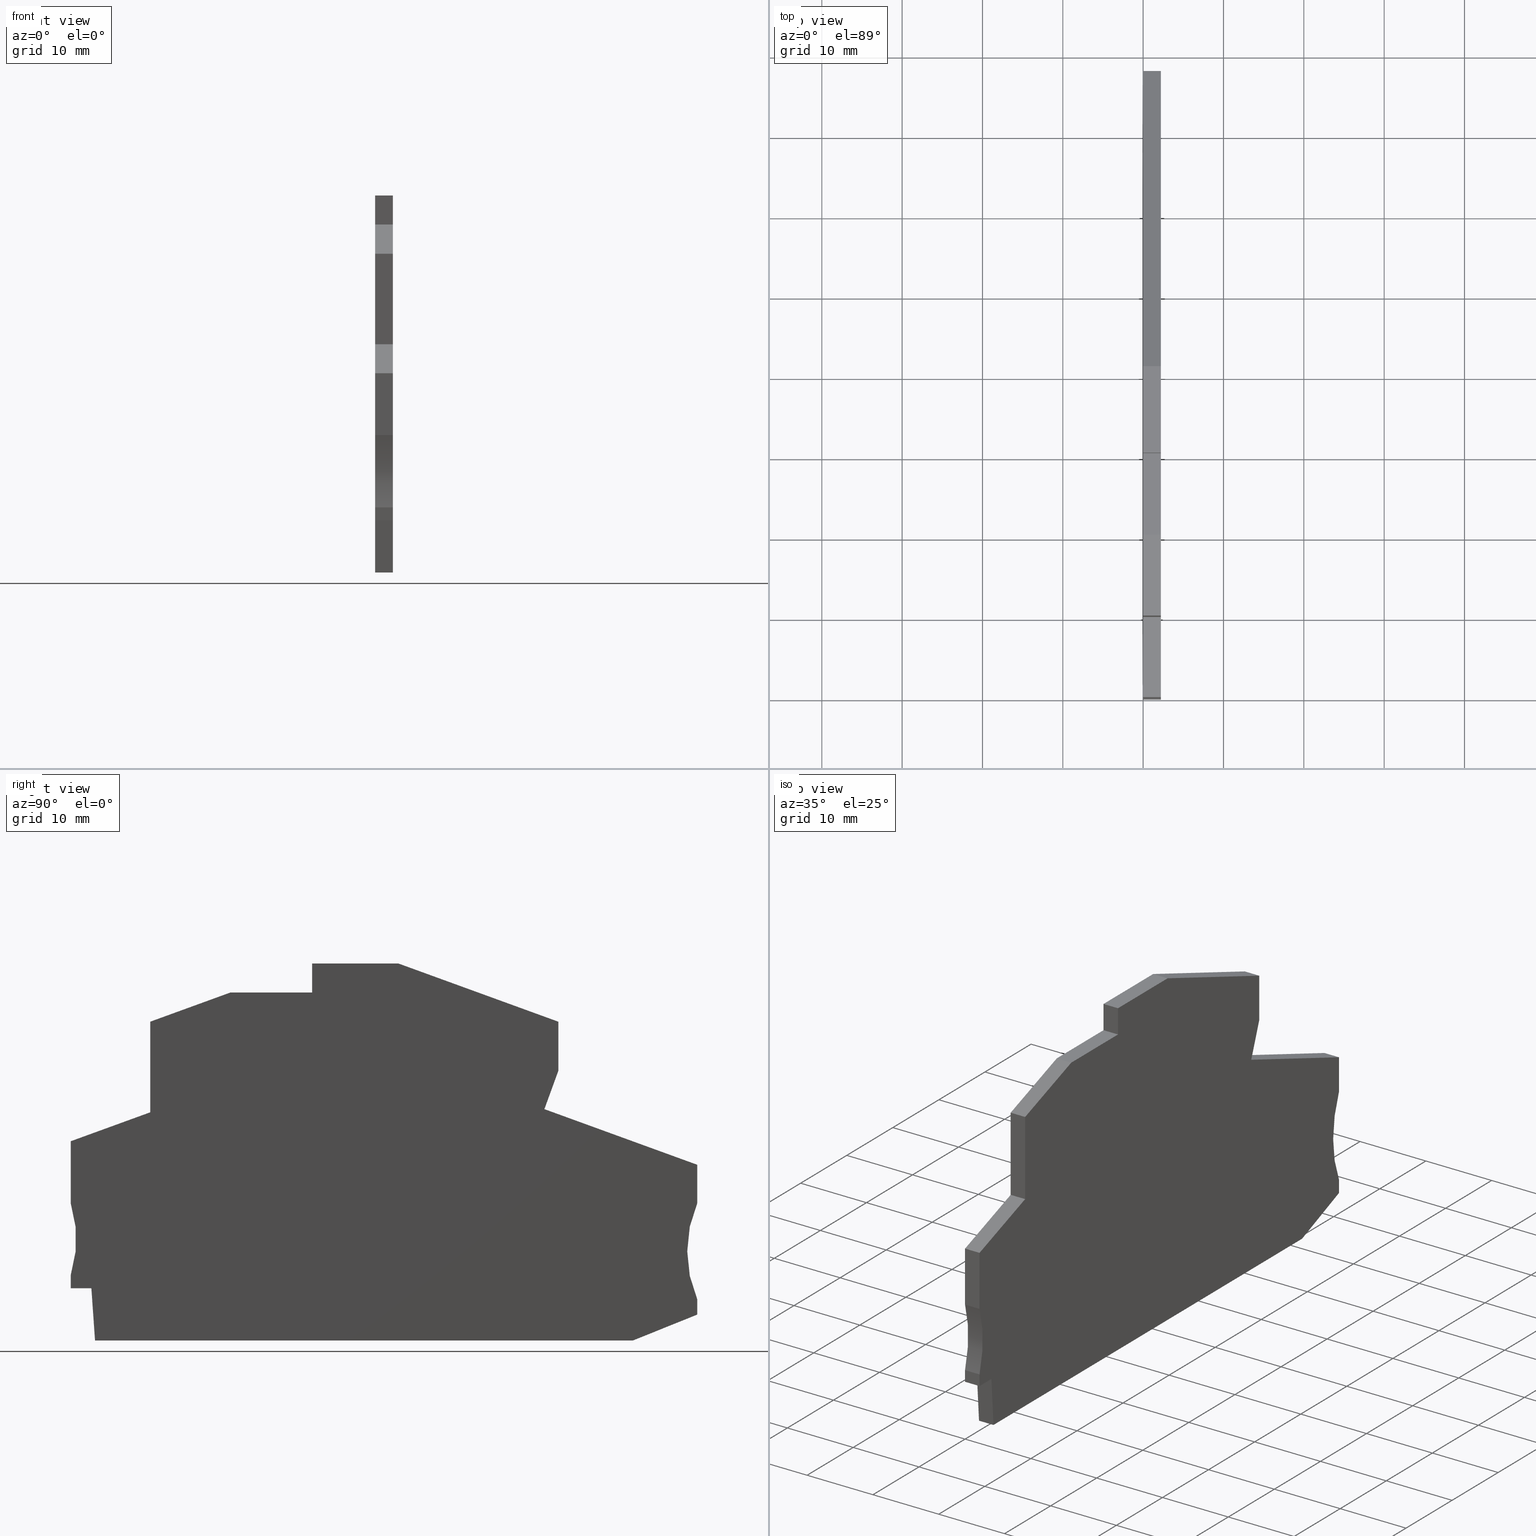
[diagram: canonical four-view strip — front | top / right | iso, engineering-drawing reading convention]
A machine part, canonical four-view strip (front | top / right | iso — engineering-drawing reading convention). The complete STEP part file that produces these views, byte-faithful:
ISO-10303-21;
HEADER;
FILE_DESCRIPTION(('Creo Elements/Direct Modeling STEP Export'),'2;1');
FILE_NAME(
'C:/temp/JobSpoolerServerData/JobServer Files/50fa4005-b6fd-4401-ae59-40
3b9b1654ef/work/output/model.stp','2020-09-17T 8:17:32',(''),(''),
'Creo Elements/Direct Modeling STEP processor for AP214 (Solid Model)',
'Creo Elements/Direct Modeling 20.1A  29-Sep-2018 (C) Parametric Technol
ogy GmbH','');
FILE_SCHEMA(('AUTOMOTIVE_DESIGN { 1 0 10303 214 1 1 1 1 }'));
ENDSEC;
DATA;
#10=CARTESIAN_POINT('',(-1.83729707538463,13.6155929972139,
-6.3948846218409E-14));
#20=DIRECTION('',(0.,0.,-1.));
#30=DIRECTION('',(-1.,0.,0.));
#40=AXIS2_PLACEMENT_3D('',#10,#20,#30);
#50=PLANE('',#40);
#60=CARTESIAN_POINT('',(-54.100000000024,22.375712,-6.3948846218409E-14)
);
#70=DIRECTION('',(-8.91857937436628E-13,1.,0.));
#80=VECTOR('',#70,1.);
#90=LINE('',#60,#80);
#100=CARTESIAN_POINT('',(-54.0999999999997,-4.91547575272546,
-6.3948846218409E-14));
#110=VERTEX_POINT('',#100);
#120=CARTESIAN_POINT('',(-54.1000000000011,-3.31547575273037,
-6.3948846218409E-14));
#130=VERTEX_POINT('',#120);
#140=EDGE_CURVE('',#110,#130,#90,.T.);
#150=ORIENTED_EDGE('',*,*,#140,.T.);
#160=CARTESIAN_POINT('',(-12.789958,-4.91547575272546,
-6.3948846218409E-14));
#170=DIRECTION('',(-1.,0.,0.));
#180=VECTOR('',#170,1.);
#190=LINE('',#160,#180);
#200=CARTESIAN_POINT('',(-51.5261083689502,-4.91547575272546,
-6.3948846218409E-14));
#210=VERTEX_POINT('',#200);
#220=EDGE_CURVE('',#210,#110,#190,.T.);
#230=ORIENTED_EDGE('',*,*,#220,.T.);
#240=CARTESIAN_POINT('',(-53.4344941226498,22.375712,
-6.3948846218409E-14));
#250=DIRECTION('',(-0.0697564737441188,0.997564050259825,0.));
#260=VECTOR('',#250,1.);
#270=LINE('',#240,#260);
#280=CARTESIAN_POINT('',(-51.0715840913172,-11.4154757527273,
-6.3948846218409E-14));
#290=VERTEX_POINT('',#280);
#300=EDGE_CURVE('',#290,#210,#270,.T.);
#310=ORIENTED_EDGE('',*,*,#300,.T.);
#320=CARTESIAN_POINT('',(-12.789958,-11.4154757527273,
-6.3948846218409E-14));
#330=DIRECTION('',(-1.,0.,0.));
#340=VECTOR('',#330,1.);
#350=LINE('',#320,#340);
#360=CARTESIAN_POINT('',(15.9050266445918,-11.4154757527273,
-6.3948846218409E-14));
#370=VERTEX_POINT('',#360);
#380=EDGE_CURVE('',#370,#290,#350,.T.);
#390=ORIENTED_EDGE('',*,*,#380,.T.);
#400=CARTESIAN_POINT('',(-12.789958,-22.9755486386901,
-6.3948846218409E-14));
#410=DIRECTION('',(-0.927558981852562,-0.373676779027864,0.));
#420=VECTOR('',#410,1.);
#430=LINE('',#400,#420);
#440=CARTESIAN_POINT('',(23.8999999761354,-8.19461762791234,
-6.3948846218409E-14));
#450=VERTEX_POINT('',#440);
#460=EDGE_CURVE('',#450,#370,#430,.T.);
#470=ORIENTED_EDGE('',*,*,#460,.T.);
#480=CARTESIAN_POINT('',(23.8999999761354,22.375712,-6.3948846218409E-14
));
#490=DIRECTION('',(-6.12323399573676E-17,-1.,0.));
#500=VECTOR('',#490,1.);
#510=LINE('',#480,#500);
#520=CARTESIAN_POINT('',(23.8999999761354,-6.31547574409539,
-6.3948846218409E-14));
#530=VERTEX_POINT('',#520);
#540=EDGE_CURVE('',#530,#450,#510,.T.);
#550=ORIENTED_EDGE('',*,*,#540,.T.);
#560=CARTESIAN_POINT('',(37.6477270610029,-0.315475744095373,
-6.3948846218409E-14));
#570=DIRECTION('',(0.,0.,1.));
#580=DIRECTION('',(1.,0.,0.));
#590=AXIS2_PLACEMENT_3D('',#560,#570,#580);
#600=CIRCLE('',#590,15.);
#610=CARTESIAN_POINT('',(23.8999999614379,5.68452422222856,
-6.3948846218409E-14));
#620=VERTEX_POINT('',#610);
#630=EDGE_CURVE('',#620,#530,#600,.T.);
#640=ORIENTED_EDGE('',*,*,#630,.T.);
#650=CARTESIAN_POINT('',(23.8999999614379,22.375712,-6.3948846218409E-14
));
#660=DIRECTION('',(0.,-1.,0.));
#670=VECTOR('',#660,1.);
#680=LINE('',#650,#670);
#690=CARTESIAN_POINT('',(23.8999999614379,10.4510262039411,
-6.3948846218409E-14));
#700=VERTEX_POINT('',#690);
#710=EDGE_CURVE('',#700,#620,#680,.T.);
#720=ORIENTED_EDGE('',*,*,#710,.T.);
#730=CARTESIAN_POINT('',(-12.789958,23.8050787983884,
-6.3948846218409E-14));
#740=DIRECTION('',(0.939692620785863,-0.342020143325795,0.));
#750=VECTOR('',#740,1.);
#760=LINE('',#730,#750);
#770=CARTESIAN_POINT('',(4.86636729023012,17.3787019462203,
-6.3948846218409E-14));
#780=VERTEX_POINT('',#770);
#790=EDGE_CURVE('',#780,#700,#760,.T.);
#800=ORIENTED_EDGE('',*,*,#790,.T.);
#810=CARTESIAN_POINT('',(6.68513021015243,22.375712,-6.3948846218409E-14
));
#820=DIRECTION('',(-0.342020143328586,-0.939692620784847,0.));
#830=VECTOR('',#820,1.);
#840=LINE('',#810,#830);
#850=CARTESIAN_POINT('',(6.59999996143703,22.1418185639441,
-6.3948846218409E-14));
#860=VERTEX_POINT('',#850);
#870=EDGE_CURVE('',#860,#780,#840,.T.);
#880=ORIENTED_EDGE('',*,*,#870,.T.);
#890=CARTESIAN_POINT('',(6.59999996143703,22.375712,-6.3948846218409E-14
));
#900=DIRECTION('',(0.,-1.,0.));
#910=VECTOR('',#900,1.);
#920=LINE('',#890,#910);
#930=CARTESIAN_POINT('',(6.59999996143703,28.2631896507696,
-6.3948846218409E-14));
#940=VERTEX_POINT('',#930);
#950=EDGE_CURVE('',#940,#860,#920,.T.);
#960=ORIENTED_EDGE('',*,*,#950,.T.);
#970=CARTESIAN_POINT('',(-12.789958,35.3205571924083,
-6.3948846218409E-14));
#980=DIRECTION('',(0.939692620785867,-0.342020143325783,0.));
#990=VECTOR('',#980,1.);
#1000=LINE('',#970,#990);
#1010=CARTESIAN_POINT('',(-13.2829730619506,35.5000000000033,
-6.3948846218409E-14));
#1020=VERTEX_POINT('',#1010);
#1030=EDGE_CURVE('',#1020,#940,#1000,.T.);
#1040=ORIENTED_EDGE('',*,*,#1030,.T.);
#1050=CARTESIAN_POINT('',(-12.789958,35.5000000000033,
-6.3948846218409E-14));
#1060=DIRECTION('',(1.,0.,0.));
#1070=VECTOR('',#1060,1.);
#1080=LINE('',#1050,#1070);
#1090=CARTESIAN_POINT('',(-24.050000038563,35.5000000000033,
-6.3948846218409E-14));
#1100=VERTEX_POINT('',#1090);
#1110=EDGE_CURVE('',#1100,#1020,#1080,.T.);
#1120=ORIENTED_EDGE('',*,*,#1110,.T.);
#1130=CARTESIAN_POINT('',(-24.050000038563,22.375712,
-6.3948846218409E-14));
#1140=DIRECTION('',(0.,1.,0.));
#1150=VECTOR('',#1140,1.);
#1160=LINE('',#1130,#1150);
#1170=CARTESIAN_POINT('',(-24.050000038563,31.9000000000017,
-6.3948846218409E-14));
#1180=VERTEX_POINT('',#1170);
#1190=EDGE_CURVE('',#1180,#1100,#1160,.T.);
#1200=ORIENTED_EDGE('',*,*,#1190,.T.);
#1210=CARTESIAN_POINT('',(-12.789958,31.9000000000017,
-6.3948846218409E-14));
#1220=DIRECTION('',(1.,0.,0.));
#1230=VECTOR('',#1220,1.);
#1240=LINE('',#1210,#1230);
#1250=CARTESIAN_POINT('',(-34.207945725206,31.9000000000017,
-6.3948846218409E-14));
#1260=VERTEX_POINT('',#1250);
#1270=EDGE_CURVE('',#1260,#1180,#1240,.T.);
#1280=ORIENTED_EDGE('',*,*,#1270,.T.);
#1290=CARTESIAN_POINT('',(-12.789958,39.6955100098559,
-6.3948846218409E-14));
#1300=DIRECTION('',(0.939692620785904,0.342020143325682,0.));
#1310=VECTOR('',#1300,1.);
#1320=LINE('',#1290,#1310);
#1330=CARTESIAN_POINT('',(-44.200000038562,28.2631896507687,
-6.3948846218409E-14));
#1340=VERTEX_POINT('',#1330);
#1350=EDGE_CURVE('',#1340,#1260,#1320,.T.);
#1360=ORIENTED_EDGE('',*,*,#1350,.T.);
#1370=CARTESIAN_POINT('',(-44.200000038562,22.375712,
-6.3948846218409E-14));
#1380=DIRECTION('',(0.,1.,0.));
#1390=VECTOR('',#1380,1.);
#1400=LINE('',#1370,#1390);
#1410=CARTESIAN_POINT('',(-44.200000038562,16.9829052625245,
-6.3948846218409E-14));
#1420=VERTEX_POINT('',#1410);
#1430=EDGE_CURVE('',#1420,#1340,#1400,.T.);
#1440=ORIENTED_EDGE('',*,*,#1430,.T.);
#1450=CARTESIAN_POINT('',(-12.789958,28.4152256216117,
-6.3948846218409E-14));
#1460=DIRECTION('',(0.939692620785904,0.342020143325682,0.));
#1470=VECTOR('',#1460,1.);
#1480=LINE('',#1450,#1470);
#1490=CARTESIAN_POINT('',(-54.1,13.3795999573244,-6.3948846218409E-14));
#1500=VERTEX_POINT('',#1490);
#1510=EDGE_CURVE('',#1500,#1420,#1480,.T.);
#1520=ORIENTED_EDGE('',*,*,#1510,.T.);
#1530=CARTESIAN_POINT('',(-54.1,22.375712,-6.3948846218409E-14));
#1540=DIRECTION('',(0.,1.,0.));
#1550=VECTOR('',#1540,1.);
#1560=LINE('',#1530,#1550);
#1570=CARTESIAN_POINT('',(-54.1,5.68452424726971,-6.3948846218409E-14));
#1580=VERTEX_POINT('',#1570);
#1590=EDGE_CURVE('',#1580,#1500,#1560,.T.);
#1600=ORIENTED_EDGE('',*,*,#1590,.T.);
#1610=CARTESIAN_POINT('',(-68.4090880212549,1.18452424727143,
-6.3948846218409E-14));
#1620=DIRECTION('',(0.,0.,1.));
#1630=DIRECTION('',(1.,0.,0.));
#1640=AXIS2_PLACEMENT_3D('',#1610,#1620,#1630);
#1650=CIRCLE('',#1640,15.0000000000001);
#1660=EDGE_CURVE('',#130,#1580,#1650,.T.);
#1670=ORIENTED_EDGE('',*,*,#1660,.T.);
#1680=EDGE_LOOP('',(#1670,#1600,#1520,#1440,#1360,#1280,#1200,#1120,
#1040,#960,#880,#800,#720,#640,#550,#470,#390,#310,#230,#150));
#1690=FACE_OUTER_BOUND('',#1680,.T.);
#1700=ADVANCED_FACE('',(#1690),#50,.T.);
#1710=COLOUR_RGB('',0.560784339904785,0.588235318660736,
0.600000023841858);
#1720=FILL_AREA_STYLE_COLOUR('',#1710);
#1730=FILL_AREA_STYLE('',(#1720));
#1740=SURFACE_STYLE_FILL_AREA(#1730);
#1750=SURFACE_SIDE_STYLE('',(#1740));
#1760=SURFACE_STYLE_USAGE(.BOTH.,#1750);
#1770=PRESENTATION_STYLE_ASSIGNMENT((#1760));
#1780=CARTESIAN_POINT('',(-16.9435786159794,-3.29416937217266,
2.19999999999994));
#1790=DIRECTION('',(0.,0.,1.));
#1800=DIRECTION('',(1.,0.,0.));
#1810=AXIS2_PLACEMENT_3D('',#1780,#1790,#1800);
#1820=PLANE('',#1810);
#1830=CARTESIAN_POINT('',(-68.4090880212549,1.18452424727143,
2.19999999999994));
#1840=DIRECTION('',(0.,0.,1.));
#1850=DIRECTION('',(1.,0.,0.));
#1860=AXIS2_PLACEMENT_3D('',#1830,#1840,#1850);
#1870=CIRCLE('',#1860,15.0000000000001);
#1880=CARTESIAN_POINT('',(-54.1000000000011,-3.31547575273034,
2.19999999999994));
#1890=VERTEX_POINT('',#1880);
#1900=CARTESIAN_POINT('',(-54.1,5.68452424726971,2.19999999999994));
#1910=VERTEX_POINT('',#1900);
#1920=EDGE_CURVE('',#1890,#1910,#1870,.T.);
#1930=ORIENTED_EDGE('',*,*,#1920,.F.);
#1940=CARTESIAN_POINT('',(-54.1,22.375712,2.19999999999994));
#1950=DIRECTION('',(0.,-1.,0.));
#1960=VECTOR('',#1950,1.);
#1970=LINE('',#1940,#1960);
#1980=CARTESIAN_POINT('',(-54.1,13.3795999573244,2.19999999999994));
#1990=VERTEX_POINT('',#1980);
#2000=EDGE_CURVE('',#1990,#1910,#1970,.T.);
#2010=ORIENTED_EDGE('',*,*,#2000,.T.);
#2020=CARTESIAN_POINT('',(-12.789958,28.4152256216117,2.19999999999994))
;
#2030=DIRECTION('',(-0.939692620785904,-0.342020143325682,0.));
#2040=VECTOR('',#2030,1.);
#2050=LINE('',#2020,#2040);
#2060=CARTESIAN_POINT('',(-44.200000038562,16.9829052625245,
2.19999999999994));
#2070=VERTEX_POINT('',#2060);
#2080=EDGE_CURVE('',#2070,#1990,#2050,.T.);
#2090=ORIENTED_EDGE('',*,*,#2080,.T.);
#2100=CARTESIAN_POINT('',(-44.200000038562,22.375712,2.19999999999994));
#2110=DIRECTION('',(0.,-1.,0.));
#2120=VECTOR('',#2110,1.);
#2130=LINE('',#2100,#2120);
#2140=CARTESIAN_POINT('',(-44.200000038562,28.2631896507687,
2.19999999999994));
#2150=VERTEX_POINT('',#2140);
#2160=EDGE_CURVE('',#2150,#2070,#2130,.T.);
#2170=ORIENTED_EDGE('',*,*,#2160,.T.);
#2180=CARTESIAN_POINT('',(-12.789958,39.6955100098559,2.19999999999994))
;
#2190=DIRECTION('',(-0.939692620785904,-0.342020143325682,0.));
#2200=VECTOR('',#2190,1.);
#2210=LINE('',#2180,#2200);
#2220=CARTESIAN_POINT('',(-34.207945725206,31.9000000000016,
2.19999999999994));
#2230=VERTEX_POINT('',#2220);
#2240=EDGE_CURVE('',#2230,#2150,#2210,.T.);
#2250=ORIENTED_EDGE('',*,*,#2240,.T.);
#2260=CARTESIAN_POINT('',(-12.789958,31.9000000000017,2.19999999999994))
;
#2270=DIRECTION('',(-1.,0.,0.));
#2280=VECTOR('',#2270,1.);
#2290=LINE('',#2260,#2280);
#2300=CARTESIAN_POINT('',(-24.050000038563,31.9000000000017,
2.19999999999994));
#2310=VERTEX_POINT('',#2300);
#2320=EDGE_CURVE('',#2310,#2230,#2290,.T.);
#2330=ORIENTED_EDGE('',*,*,#2320,.T.);
#2340=CARTESIAN_POINT('',(-24.050000038563,22.375712,2.19999999999994));
#2350=DIRECTION('',(0.,-1.,0.));
#2360=VECTOR('',#2350,1.);
#2370=LINE('',#2340,#2360);
#2380=CARTESIAN_POINT('',(-24.050000038563,35.5000000000033,
2.19999999999994));
#2390=VERTEX_POINT('',#2380);
#2400=EDGE_CURVE('',#2390,#2310,#2370,.T.);
#2410=ORIENTED_EDGE('',*,*,#2400,.T.);
#2420=CARTESIAN_POINT('',(-12.789958,35.5000000000033,2.19999999999994))
;
#2430=DIRECTION('',(-1.,0.,0.));
#2440=VECTOR('',#2430,1.);
#2450=LINE('',#2420,#2440);
#2460=CARTESIAN_POINT('',(-13.2829730619506,35.5000000000033,
2.19999999999994));
#2470=VERTEX_POINT('',#2460);
#2480=EDGE_CURVE('',#2470,#2390,#2450,.T.);
#2490=ORIENTED_EDGE('',*,*,#2480,.T.);
#2500=CARTESIAN_POINT('',(-12.789958,35.3205571924083,2.19999999999994))
;
#2510=DIRECTION('',(-0.939692620785867,0.342020143325783,0.));
#2520=VECTOR('',#2510,1.);
#2530=LINE('',#2500,#2520);
#2540=CARTESIAN_POINT('',(6.59999996143703,28.2631896507696,
2.19999999999994));
#2550=VERTEX_POINT('',#2540);
#2560=EDGE_CURVE('',#2550,#2470,#2530,.T.);
#2570=ORIENTED_EDGE('',*,*,#2560,.T.);
#2580=CARTESIAN_POINT('',(6.59999996143703,22.375712,2.19999999999994));
#2590=DIRECTION('',(0.,1.,0.));
#2600=VECTOR('',#2590,1.);
#2610=LINE('',#2580,#2600);
#2620=CARTESIAN_POINT('',(6.59999996143703,22.1418185639441,
2.19999999999994));
#2630=VERTEX_POINT('',#2620);
#2640=EDGE_CURVE('',#2630,#2550,#2610,.T.);
#2650=ORIENTED_EDGE('',*,*,#2640,.T.);
#2660=CARTESIAN_POINT('',(6.68513021015243,22.375712,2.19999999999994));
#2670=DIRECTION('',(0.342020143328586,0.939692620784847,0.));
#2680=VECTOR('',#2670,1.);
#2690=LINE('',#2660,#2680);
#2700=CARTESIAN_POINT('',(4.86636729023012,17.3787019462203,
2.19999999999994));
#2710=VERTEX_POINT('',#2700);
#2720=EDGE_CURVE('',#2710,#2630,#2690,.T.);
#2730=ORIENTED_EDGE('',*,*,#2720,.T.);
#2740=CARTESIAN_POINT('',(-12.789958,23.8050787983884,2.19999999999994))
;
#2750=DIRECTION('',(-0.939692620785863,0.342020143325795,0.));
#2760=VECTOR('',#2750,1.);
#2770=LINE('',#2740,#2760);
#2780=CARTESIAN_POINT('',(23.8999999614379,10.4510262039411,
2.19999999999994));
#2790=VERTEX_POINT('',#2780);
#2800=EDGE_CURVE('',#2790,#2710,#2770,.T.);
#2810=ORIENTED_EDGE('',*,*,#2800,.T.);
#2820=CARTESIAN_POINT('',(23.8999999614379,22.375712,2.19999999999994));
#2830=DIRECTION('',(0.,1.,0.));
#2840=VECTOR('',#2830,1.);
#2850=LINE('',#2820,#2840);
#2860=CARTESIAN_POINT('',(23.8999999614379,5.68452422222856,
2.19999999999994));
#2870=VERTEX_POINT('',#2860);
#2880=EDGE_CURVE('',#2870,#2790,#2850,.T.);
#2890=ORIENTED_EDGE('',*,*,#2880,.T.);
#2900=CARTESIAN_POINT('',(37.6477270610029,-0.315475744095373,
2.19999999999994));
#2910=DIRECTION('',(0.,0.,1.));
#2920=DIRECTION('',(1.,0.,0.));
#2930=AXIS2_PLACEMENT_3D('',#2900,#2910,#2920);
#2940=CIRCLE('',#2930,15.);
#2950=CARTESIAN_POINT('',(23.8999999761354,-6.31547574409539,
2.19999999999994));
#2960=VERTEX_POINT('',#2950);
#2970=EDGE_CURVE('',#2870,#2960,#2940,.T.);
#2980=ORIENTED_EDGE('',*,*,#2970,.F.);
#2990=CARTESIAN_POINT('',(23.8999999761354,22.375712,2.19999999999994));
#3000=DIRECTION('',(6.12323399573676E-17,1.,0.));
#3010=VECTOR('',#3000,1.);
#3020=LINE('',#2990,#3010);
#3030=CARTESIAN_POINT('',(23.8999999761354,-8.19461762791234,
2.19999999999994));
#3040=VERTEX_POINT('',#3030);
#3050=EDGE_CURVE('',#3040,#2960,#3020,.T.);
#3060=ORIENTED_EDGE('',*,*,#3050,.T.);
#3070=CARTESIAN_POINT('',(-12.789958,-22.9755486386901,2.19999999999994)
);
#3080=DIRECTION('',(0.927558981852562,0.373676779027864,0.));
#3090=VECTOR('',#3080,1.);
#3100=LINE('',#3070,#3090);
#3110=CARTESIAN_POINT('',(15.9050266445918,-11.4154757527273,
2.19999999999994));
#3120=VERTEX_POINT('',#3110);
#3130=EDGE_CURVE('',#3120,#3040,#3100,.T.);
#3140=ORIENTED_EDGE('',*,*,#3130,.T.);
#3150=CARTESIAN_POINT('',(-12.789958,-11.4154757527273,2.19999999999994)
);
#3160=DIRECTION('',(1.,0.,0.));
#3170=VECTOR('',#3160,1.);
#3180=LINE('',#3150,#3170);
#3190=CARTESIAN_POINT('',(-51.0715840913172,-11.4154757527273,
2.19999999999994));
#3200=VERTEX_POINT('',#3190);
#3210=EDGE_CURVE('',#3200,#3120,#3180,.T.);
#3220=ORIENTED_EDGE('',*,*,#3210,.T.);
#3230=CARTESIAN_POINT('',(-53.4344941226498,22.375712,2.19999999999994))
;
#3240=DIRECTION('',(0.0697564737441188,-0.997564050259825,0.));
#3250=VECTOR('',#3240,1.);
#3260=LINE('',#3230,#3250);
#3270=CARTESIAN_POINT('',(-51.5261083689501,-4.91547575272546,
2.19999999999994));
#3280=VERTEX_POINT('',#3270);
#3290=EDGE_CURVE('',#3280,#3200,#3260,.T.);
#3300=ORIENTED_EDGE('',*,*,#3290,.T.);
#3310=CARTESIAN_POINT('',(-12.789958,-4.91547575272546,2.19999999999994)
);
#3320=DIRECTION('',(1.,0.,0.));
#3330=VECTOR('',#3320,1.);
#3340=LINE('',#3310,#3330);
#3350=CARTESIAN_POINT('',(-54.0999999999997,-4.91547575272546,
2.19999999999994));
#3360=VERTEX_POINT('',#3350);
#3370=EDGE_CURVE('',#3360,#3280,#3340,.T.);
#3380=ORIENTED_EDGE('',*,*,#3370,.T.);
#3390=CARTESIAN_POINT('',(-54.100000000024,22.375712,2.19999999999994));
#3400=DIRECTION('',(8.91857937436628E-13,-1.,0.));
#3410=VECTOR('',#3400,1.);
#3420=LINE('',#3390,#3410);
#3430=EDGE_CURVE('',#1890,#3360,#3420,.T.);
#3440=ORIENTED_EDGE('',*,*,#3430,.T.);
#3450=EDGE_LOOP('',(#3440,#3380,#3300,#3220,#3140,#3060,#2980,#2890,
#2810,#2730,#2650,#2570,#2490,#2410,#2330,#2250,#2170,#2090,#2010,#1930)
);
#3460=FACE_OUTER_BOUND('',#3450,.T.);
#3470=ADVANCED_FACE('',(#3460),#1820,.T.);
#3480=COLOUR_RGB('',0.560784339904785,0.588235318660736,
0.600000023841858);
#3490=FILL_AREA_STYLE_COLOUR('',#3480);
#3500=FILL_AREA_STYLE('',(#3490));
#3510=SURFACE_STYLE_FILL_AREA(#3500);
#3520=SURFACE_SIDE_STYLE('',(#3510));
#3530=SURFACE_STYLE_USAGE(.BOTH.,#3520);
#3540=PRESENTATION_STYLE_ASSIGNMENT((#3530));
#3550=CARTESIAN_POINT('',(6.59999996143703,28.123148143125,
-6.3948846218409E-14));
#3560=DIRECTION('',(1.,0.,0.));
#3570=DIRECTION('',(0.,1.,0.));
#3580=AXIS2_PLACEMENT_3D('',#3550,#3560,#3570);
#3590=PLANE('',#3580);
#3600=ORIENTED_EDGE('',*,*,#950,.F.);
#3610=CARTESIAN_POINT('',(6.59999996143703,22.1418185639441,
-6.3948846218409E-14));
#3620=DIRECTION('',(0.,0.,1.));
#3630=VECTOR('',#3620,1.);
#3640=LINE('',#3610,#3630);
#3650=EDGE_CURVE('',#860,#2630,#3640,.T.);
#3660=ORIENTED_EDGE('',*,*,#3650,.F.);
#3670=ORIENTED_EDGE('',*,*,#2640,.F.);
#3680=CARTESIAN_POINT('',(6.59999996143703,28.2631896507696,
-6.3948846218409E-14));
#3690=DIRECTION('',(0.,0.,-1.));
#3700=VECTOR('',#3690,1.);
#3710=LINE('',#3680,#3700);
#3720=EDGE_CURVE('',#2550,#940,#3710,.T.);
#3730=ORIENTED_EDGE('',*,*,#3720,.F.);
#3740=EDGE_LOOP('',(#3730,#3670,#3660,#3600));
#3750=FACE_OUTER_BOUND('',#3740,.T.);
#3760=ADVANCED_FACE('',(#3750),#3590,.T.);
#3770=COLOUR_RGB('',0.560784339904785,0.588235318660736,
0.600000023841858);
#3780=FILL_AREA_STYLE_COLOUR('',#3770);
#3790=FILL_AREA_STYLE('',(#3780));
#3800=SURFACE_STYLE_FILL_AREA(#3790);
#3810=SURFACE_SIDE_STYLE('',(#3800));
#3820=SURFACE_STYLE_USAGE(.BOTH.,#3810);
#3830=PRESENTATION_STYLE_ASSIGNMENT((#3820));
#3840=CARTESIAN_POINT('',(15.80809659406,-11.4154757527273,
-6.3948846218409E-14));
#3850=DIRECTION('',(0.,-1.,0.));
#3860=DIRECTION('',(1.,0.,0.));
#3870=AXIS2_PLACEMENT_3D('',#3840,#3850,#3860);
#3880=PLANE('',#3870);
#3890=CARTESIAN_POINT('',(-51.0715840913172,-11.4154757527273,
-6.3948846218409E-14));
#3900=DIRECTION('',(0.,0.,-1.));
#3910=VECTOR('',#3900,1.);
#3920=LINE('',#3890,#3910);
#3930=EDGE_CURVE('',#3200,#290,#3920,.T.);
#3940=ORIENTED_EDGE('',*,*,#3930,.T.);
#3950=ORIENTED_EDGE('',*,*,#3210,.F.);
#3960=CARTESIAN_POINT('',(15.9050266445918,-11.4154757527273,
-6.3948846218409E-14));
#3970=DIRECTION('',(0.,0.,-1.));
#3980=VECTOR('',#3970,1.);
#3990=LINE('',#3960,#3980);
#4000=EDGE_CURVE('',#3120,#370,#3990,.T.);
#4010=ORIENTED_EDGE('',*,*,#4000,.F.);
#4020=ORIENTED_EDGE('',*,*,#380,.F.);
#4030=EDGE_LOOP('',(#4020,#4010,#3950,#3940));
#4040=FACE_OUTER_BOUND('',#4030,.T.);
#4050=ADVANCED_FACE('',(#4040),#3880,.T.);
#4060=COLOUR_RGB('',0.560784339904785,0.588235318660736,
0.600000023841858);
#4070=FILL_AREA_STYLE_COLOUR('',#4060);
#4080=FILL_AREA_STYLE('',(#4070));
#4090=SURFACE_STYLE_FILL_AREA(#4080);
#4100=SURFACE_SIDE_STYLE('',(#4090));
#4110=SURFACE_STYLE_USAGE(.BOTH.,#4100);
#4120=PRESENTATION_STYLE_ASSIGNMENT((#4110));
#4130=CARTESIAN_POINT('',(-13.2829730619506,35.5000000000033,
-6.3948846218409E-14));
#4140=DIRECTION('',(0.342020143325783,0.939692620785867,-0.));
#4150=DIRECTION('',(-0.939692620785867,0.342020143325783,0.));
#4160=AXIS2_PLACEMENT_3D('',#4130,#4140,#4150);
#4170=PLANE('',#4160);
#4180=ORIENTED_EDGE('',*,*,#3720,.T.);
#4190=ORIENTED_EDGE('',*,*,#2560,.F.);
#4200=CARTESIAN_POINT('',(-13.2829730619506,35.5000000000033,
-6.3948846218409E-14));
#4210=DIRECTION('',(0.,0.,-1.));
#4220=VECTOR('',#4210,1.);
#4230=LINE('',#4200,#4220);
#4240=EDGE_CURVE('',#2470,#1020,#4230,.T.);
#4250=ORIENTED_EDGE('',*,*,#4240,.F.);
#4260=ORIENTED_EDGE('',*,*,#1030,.F.);
#4270=EDGE_LOOP('',(#4260,#4250,#4190,#4180));
#4280=FACE_OUTER_BOUND('',#4270,.T.);
#4290=ADVANCED_FACE('',(#4280),#4170,.T.);
#4300=COLOUR_RGB('',0.560784339904785,0.588235318660736,
0.600000023841858);
#4310=FILL_AREA_STYLE_COLOUR('',#4300);
#4320=FILL_AREA_STYLE('',(#4310));
#4330=SURFACE_STYLE_FILL_AREA(#4320);
#4340=SURFACE_SIDE_STYLE('',(#4330));
#4350=SURFACE_STYLE_USAGE(.BOTH.,#4340);
#4360=PRESENTATION_STYLE_ASSIGNMENT((#4350));
#4370=CARTESIAN_POINT('',(-23.550000038563,35.5000000000033,
-6.3948846218409E-14));
#4380=DIRECTION('',(0.,1.,-0.));
#4390=DIRECTION('',(-1.,0.,0.));
#4400=AXIS2_PLACEMENT_3D('',#4370,#4380,#4390);
#4410=PLANE('',#4400);
#4420=ORIENTED_EDGE('',*,*,#1110,.F.);
#4430=ORIENTED_EDGE('',*,*,#4240,.T.);
#4440=ORIENTED_EDGE('',*,*,#2480,.F.);
#4450=CARTESIAN_POINT('',(-24.050000038563,35.5000000000033,
-6.3948846218409E-14));
#4460=DIRECTION('',(0.,0.,-1.));
#4470=VECTOR('',#4460,1.);
#4480=LINE('',#4450,#4470);
#4490=EDGE_CURVE('',#2390,#1100,#4480,.T.);
#4500=ORIENTED_EDGE('',*,*,#4490,.F.);
#4510=EDGE_LOOP('',(#4500,#4440,#4430,#4420));
#4520=FACE_OUTER_BOUND('',#4510,.T.);
#4530=ADVANCED_FACE('',(#4520),#4410,.T.);
#4540=COLOUR_RGB('',0.560784339904785,0.588235318660736,
0.600000023841858);
#4550=FILL_AREA_STYLE_COLOUR('',#4540);
#4560=FILL_AREA_STYLE('',(#4550));
#4570=SURFACE_STYLE_FILL_AREA(#4560);
#4580=SURFACE_SIDE_STYLE('',(#4570));
#4590=SURFACE_STYLE_USAGE(.BOTH.,#4580);
#4600=PRESENTATION_STYLE_ASSIGNMENT((#4590));
#4610=CARTESIAN_POINT('',(4.86636729023012,17.3787019462203,
-6.3948846218409E-14));
#4620=DIRECTION('',(0.342020143325795,0.939692620785863,-0.));
#4630=DIRECTION('',(-0.939692620785863,0.342020143325795,0.));
#4640=AXIS2_PLACEMENT_3D('',#4610,#4620,#4630);
#4650=PLANE('',#4640);
#4660=CARTESIAN_POINT('',(23.8999999614379,10.4510262039411,
-6.3948846218409E-14));
#4670=DIRECTION('',(0.,0.,-1.));
#4680=VECTOR('',#4670,1.);
#4690=LINE('',#4660,#4680);
#4700=EDGE_CURVE('',#2790,#700,#4690,.T.);
#4710=ORIENTED_EDGE('',*,*,#4700,.T.);
#4720=ORIENTED_EDGE('',*,*,#2800,.F.);
#4730=CARTESIAN_POINT('',(4.86636729023012,17.3787019462203,
-6.3948846218409E-14));
#4740=DIRECTION('',(0.,0.,1.));
#4750=VECTOR('',#4740,1.);
#4760=LINE('',#4730,#4750);
#4770=EDGE_CURVE('',#780,#2710,#4760,.T.);
#4780=ORIENTED_EDGE('',*,*,#4770,.T.);
#4790=ORIENTED_EDGE('',*,*,#790,.F.);
#4800=EDGE_LOOP('',(#4790,#4780,#4720,#4710));
#4810=FACE_OUTER_BOUND('',#4800,.T.);
#4820=ADVANCED_FACE('',(#4810),#4650,.T.);
#4830=COLOUR_RGB('',0.560784339904785,0.588235318660736,
0.600000023841858);
#4840=FILL_AREA_STYLE_COLOUR('',#4830);
#4850=FILL_AREA_STYLE('',(#4840));
#4860=SURFACE_STYLE_FILL_AREA(#4850);
#4870=SURFACE_SIDE_STYLE('',(#4860));
#4880=SURFACE_STYLE_USAGE(.BOTH.,#4870);
#4890=PRESENTATION_STYLE_ASSIGNMENT((#4880));
#4900=CARTESIAN_POINT('',(-24.050000038563,31.9000000000017,
-6.3948846218409E-14));
#4910=DIRECTION('',(-1.,0.,0.));
#4920=DIRECTION('',(0.,-1.,0.));
#4930=AXIS2_PLACEMENT_3D('',#4900,#4910,#4920);
#4940=PLANE('',#4930);
#4950=ORIENTED_EDGE('',*,*,#4490,.T.);
#4960=ORIENTED_EDGE('',*,*,#2400,.F.);
#4970=CARTESIAN_POINT('',(-24.050000038563,31.9000000000017,
-6.3948846218409E-14));
#4980=DIRECTION('',(0.,0.,1.));
#4990=VECTOR('',#4980,1.);
#5000=LINE('',#4970,#4990);
#5010=EDGE_CURVE('',#1180,#2310,#5000,.T.);
#5020=ORIENTED_EDGE('',*,*,#5010,.T.);
#5030=ORIENTED_EDGE('',*,*,#1190,.F.);
#5040=EDGE_LOOP('',(#5030,#5020,#4960,#4950));
#5050=FACE_OUTER_BOUND('',#5040,.T.);
#5060=ADVANCED_FACE('',(#5050),#4940,.T.);
#5070=COLOUR_RGB('',0.560784339904785,0.588235318660736,
0.600000023841858);
#5080=FILL_AREA_STYLE_COLOUR('',#5070);
#5090=FILL_AREA_STYLE('',(#5080));
#5100=SURFACE_STYLE_FILL_AREA(#5090);
#5110=SURFACE_SIDE_STYLE('',(#5100));
#5120=SURFACE_STYLE_USAGE(.BOTH.,#5110);
#5130=PRESENTATION_STYLE_ASSIGNMENT((#5120));
#5140=CARTESIAN_POINT('',(-34.207945725206,31.9000000000017,
-6.3948846218409E-14));
#5150=DIRECTION('',(0.,1.,-0.));
#5160=DIRECTION('',(-1.,0.,0.));
#5170=AXIS2_PLACEMENT_3D('',#5140,#5150,#5160);
#5180=PLANE('',#5170);
#5190=ORIENTED_EDGE('',*,*,#5010,.F.);
#5200=ORIENTED_EDGE('',*,*,#2320,.F.);
#5210=CARTESIAN_POINT('',(-34.207945725206,31.9000000000016,
-6.3948846218409E-14));
#5220=DIRECTION('',(0.,0.,-1.));
#5230=VECTOR('',#5220,1.);
#5240=LINE('',#5210,#5230);
#5250=EDGE_CURVE('',#2230,#1260,#5240,.T.);
#5260=ORIENTED_EDGE('',*,*,#5250,.F.);
#5270=ORIENTED_EDGE('',*,*,#1270,.F.);
#5280=EDGE_LOOP('',(#5270,#5260,#5200,#5190));
#5290=FACE_OUTER_BOUND('',#5280,.T.);
#5300=ADVANCED_FACE('',(#5290),#5180,.T.);
#5310=COLOUR_RGB('',0.560784339904785,0.588235318660736,
0.600000023841858);
#5320=FILL_AREA_STYLE_COLOUR('',#5310);
#5330=FILL_AREA_STYLE('',(#5320));
#5340=SURFACE_STYLE_FILL_AREA(#5330);
#5350=SURFACE_SIDE_STYLE('',(#5340));
#5360=SURFACE_STYLE_USAGE(.BOTH.,#5350);
#5370=PRESENTATION_STYLE_ASSIGNMENT((#5360));
#5380=CARTESIAN_POINT('',(-44.0684040672272,28.3110866672839,
-6.3948846218409E-14));
#5390=DIRECTION('',(-0.342020143325682,0.939692620785904,0.));
#5400=DIRECTION('',(-0.939692620785904,-0.342020143325682,0.));
#5410=AXIS2_PLACEMENT_3D('',#5380,#5390,#5400);
#5420=PLANE('',#5410);
#5430=ORIENTED_EDGE('',*,*,#1350,.F.);
#5440=ORIENTED_EDGE('',*,*,#5250,.T.);
#5450=ORIENTED_EDGE('',*,*,#2240,.F.);
#5460=CARTESIAN_POINT('',(-44.200000038562,28.2631896507687,
-6.3948846218409E-14));
#5470=DIRECTION('',(0.,0.,-1.));
#5480=VECTOR('',#5470,1.);
#5490=LINE('',#5460,#5480);
#5500=EDGE_CURVE('',#2150,#1340,#5490,.T.);
#5510=ORIENTED_EDGE('',*,*,#5500,.F.);
#5520=EDGE_LOOP('',(#5510,#5450,#5440,#5430));
#5530=FACE_OUTER_BOUND('',#5520,.T.);
#5540=ADVANCED_FACE('',(#5530),#5420,.T.);
#5550=COLOUR_RGB('',0.560784339904785,0.588235318660736,
0.600000023841858);
#5560=FILL_AREA_STYLE_COLOUR('',#5550);
#5570=FILL_AREA_STYLE('',(#5560));
#5580=SURFACE_STYLE_FILL_AREA(#5570);
#5590=SURFACE_SIDE_STYLE('',(#5580));
#5600=SURFACE_STYLE_USAGE(.BOTH.,#5590);
#5610=PRESENTATION_STYLE_ASSIGNMENT((#5600));
#5620=CARTESIAN_POINT('',(23.8999999761354,-6.71930988158908,
-6.3948846218409E-14));
#5630=DIRECTION('',(1.,-6.12323399573676E-17,0.));
#5640=DIRECTION('',(6.12323399573676E-17,1.,0.));
#5650=AXIS2_PLACEMENT_3D('',#5620,#5630,#5640);
#5660=PLANE('',#5650);
#5670=CARTESIAN_POINT('',(23.8999999761354,-6.31547574409539,
-6.3948846218409E-14));
#5680=DIRECTION('',(0.,0.,1.));
#5690=VECTOR('',#5680,1.);
#5700=LINE('',#5670,#5690);
#5710=EDGE_CURVE('',#530,#2960,#5700,.T.);
#5720=ORIENTED_EDGE('',*,*,#5710,.T.);
#5730=ORIENTED_EDGE('',*,*,#540,.F.);
#5740=CARTESIAN_POINT('',(23.8999999761354,-8.19461762791235,
-6.3948846218409E-14));
#5750=DIRECTION('',(0.,0.,-1.));
#5760=VECTOR('',#5750,1.);
#5770=LINE('',#5740,#5760);
#5780=EDGE_CURVE('',#3040,#450,#5770,.T.);
#5790=ORIENTED_EDGE('',*,*,#5780,.T.);
#5800=ORIENTED_EDGE('',*,*,#3050,.F.);
#5810=EDGE_LOOP('',(#5800,#5790,#5730,#5720));
#5820=FACE_OUTER_BOUND('',#5810,.T.);
#5830=ADVANCED_FACE('',(#5820),#5660,.T.);
#5840=COLOUR_RGB('',0.560784339904785,0.588235318660736,
0.600000023841858);
#5850=FILL_AREA_STYLE_COLOUR('',#5840);
#5860=FILL_AREA_STYLE('',(#5850));
#5870=SURFACE_STYLE_FILL_AREA(#5860);
#5880=SURFACE_SIDE_STYLE('',(#5870));
#5890=SURFACE_STYLE_USAGE(.BOTH.,#5880);
#5900=PRESENTATION_STYLE_ASSIGNMENT((#5890));
#5910=CARTESIAN_POINT('',(-44.200000038562,16.9829052625245,
-6.3948846218409E-14));
#5920=DIRECTION('',(-1.,0.,0.));
#5930=DIRECTION('',(0.,-1.,0.));
#5940=AXIS2_PLACEMENT_3D('',#5910,#5920,#5930);
#5950=PLANE('',#5940);
#5960=ORIENTED_EDGE('',*,*,#5500,.T.);
#5970=ORIENTED_EDGE('',*,*,#2160,.F.);
#5980=CARTESIAN_POINT('',(-44.200000038562,16.9829052625245,
-6.3948846218409E-14));
#5990=DIRECTION('',(0.,0.,1.));
#6000=VECTOR('',#5990,1.);
#6010=LINE('',#5980,#6000);
#6020=EDGE_CURVE('',#1420,#2070,#6010,.T.);
#6030=ORIENTED_EDGE('',*,*,#6020,.T.);
#6040=ORIENTED_EDGE('',*,*,#1430,.F.);
#6050=EDGE_LOOP('',(#6040,#6030,#5970,#5960));
#6060=FACE_OUTER_BOUND('',#6050,.T.);
#6070=ADVANCED_FACE('',(#6060),#5950,.T.);
#6080=COLOUR_RGB('',0.560784339904785,0.588235318660736,
0.600000023841858);
#6090=FILL_AREA_STYLE_COLOUR('',#6080);
#6100=FILL_AREA_STYLE('',(#6090));
#6110=SURFACE_STYLE_FILL_AREA(#6100);
#6120=SURFACE_SIDE_STYLE('',(#6110));
#6130=SURFACE_STYLE_USAGE(.BOTH.,#6120);
#6140=PRESENTATION_STYLE_ASSIGNMENT((#6130));
#6150=CARTESIAN_POINT('',(-53.9684040672273,13.4274969598042,
-6.3948846218409E-14));
#6160=DIRECTION('',(-0.342020143325682,0.939692620785904,0.));
#6170=DIRECTION('',(-0.939692620785904,-0.342020143325682,0.));
#6180=AXIS2_PLACEMENT_3D('',#6150,#6160,#6170);
#6190=PLANE('',#6180);
#6200=ORIENTED_EDGE('',*,*,#1510,.F.);
#6210=ORIENTED_EDGE('',*,*,#6020,.F.);
#6220=ORIENTED_EDGE('',*,*,#2080,.F.);
#6230=CARTESIAN_POINT('',(-54.1,13.3795999573244,-6.3948846218409E-14));
#6240=DIRECTION('',(0.,0.,-1.));
#6250=VECTOR('',#6240,1.);
#6260=LINE('',#6230,#6250);
#6270=EDGE_CURVE('',#1990,#1500,#6260,.T.);
#6280=ORIENTED_EDGE('',*,*,#6270,.F.);
#6290=EDGE_LOOP('',(#6280,#6220,#6210,#6200));
#6300=FACE_OUTER_BOUND('',#6290,.T.);
#6310=ADVANCED_FACE('',(#6300),#6190,.T.);
#6320=COLOUR_RGB('',0.560784339904785,0.588235318660736,
0.600000023841858);
#6330=FILL_AREA_STYLE_COLOUR('',#6320);
#6340=FILL_AREA_STYLE('',(#6330));
#6350=SURFACE_STYLE_FILL_AREA(#6340);
#6360=SURFACE_SIDE_STYLE('',(#6350));
#6370=SURFACE_STYLE_USAGE(.BOTH.,#6360);
#6380=PRESENTATION_STYLE_ASSIGNMENT((#6370));
#6390=CARTESIAN_POINT('',(22.6473535341914,-8.69925926994729,
-6.3948846218409E-14));
#6400=DIRECTION('',(0.373676779027864,-0.927558981852562,0.));
#6410=DIRECTION('',(0.927558981852562,0.373676779027864,0.));
#6420=AXIS2_PLACEMENT_3D('',#6390,#6400,#6410);
#6430=PLANE('',#6420);
#6440=ORIENTED_EDGE('',*,*,#4000,.T.);
#6450=ORIENTED_EDGE('',*,*,#3130,.F.);
#6460=ORIENTED_EDGE('',*,*,#5780,.F.);
#6470=ORIENTED_EDGE('',*,*,#460,.F.);
#6480=EDGE_LOOP('',(#6470,#6460,#6450,#6440));
#6490=FACE_OUTER_BOUND('',#6480,.T.);
#6500=ADVANCED_FACE('',(#6490),#6430,.T.);
#6510=COLOUR_RGB('',0.560784339904785,0.588235318660736,
0.600000023841858);
#6520=FILL_AREA_STYLE_COLOUR('',#6510);
#6530=FILL_AREA_STYLE('',(#6520));
#6540=SURFACE_STYLE_FILL_AREA(#6530);
#6550=SURFACE_SIDE_STYLE('',(#6540));
#6560=SURFACE_STYLE_USAGE(.BOTH.,#6550);
#6570=PRESENTATION_STYLE_ASSIGNMENT((#6560));
#6580=CARTESIAN_POINT('',(-54.1,5.9817784530609,-6.3948846218409E-14));
#6590=DIRECTION('',(-1.,0.,0.));
#6600=DIRECTION('',(0.,-1.,0.));
#6610=AXIS2_PLACEMENT_3D('',#6580,#6590,#6600);
#6620=PLANE('',#6610);
#6630=ORIENTED_EDGE('',*,*,#1590,.F.);
#6640=ORIENTED_EDGE('',*,*,#6270,.T.);
#6650=ORIENTED_EDGE('',*,*,#2000,.F.);
#6660=CARTESIAN_POINT('',(-54.1,5.68452424726971,-6.3948846218409E-14));
#6670=DIRECTION('',(0.,0.,-1.));
#6680=VECTOR('',#6670,1.);
#6690=LINE('',#6660,#6680);
#6700=EDGE_CURVE('',#1910,#1580,#6690,.T.);
#6710=ORIENTED_EDGE('',*,*,#6700,.F.);
#6720=EDGE_LOOP('',(#6710,#6650,#6640,#6630));
#6730=FACE_OUTER_BOUND('',#6720,.T.);
#6740=ADVANCED_FACE('',(#6730),#6620,.T.);
#6750=COLOUR_RGB('',0.560784339904785,0.588235318660736,
0.600000023841858);
#6760=FILL_AREA_STYLE_COLOUR('',#6750);
#6770=FILL_AREA_STYLE('',(#6760));
#6780=SURFACE_STYLE_FILL_AREA(#6770);
#6790=SURFACE_SIDE_STYLE('',(#6780));
#6800=SURFACE_STYLE_USAGE(.BOTH.,#6790);
#6810=PRESENTATION_STYLE_ASSIGNMENT((#6800));
#6820=CARTESIAN_POINT('',(23.8999999614379,10.3109846962992,
-6.3948846218409E-14));
#6830=DIRECTION('',(1.,0.,0.));
#6840=DIRECTION('',(0.,1.,0.));
#6850=AXIS2_PLACEMENT_3D('',#6820,#6830,#6840);
#6860=PLANE('',#6850);
#6870=CARTESIAN_POINT('',(23.8999999614379,5.68452422222856,
-6.3948846218409E-14));
#6880=DIRECTION('',(0.,0.,-1.));
#6890=VECTOR('',#6880,1.);
#6900=LINE('',#6870,#6890);
#6910=EDGE_CURVE('',#2870,#620,#6900,.T.);
#6920=ORIENTED_EDGE('',*,*,#6910,.T.);
#6930=ORIENTED_EDGE('',*,*,#2880,.F.);
#6940=ORIENTED_EDGE('',*,*,#4700,.F.);
#6950=ORIENTED_EDGE('',*,*,#710,.F.);
#6960=EDGE_LOOP('',(#6950,#6940,#6930,#6920));
#6970=FACE_OUTER_BOUND('',#6960,.T.);
#6980=ADVANCED_FACE('',(#6970),#6860,.T.);
#6990=COLOUR_RGB('',0.560784339904785,0.588235318660736,
0.600000023841858);
#7000=FILL_AREA_STYLE_COLOUR('',#6990);
#7010=FILL_AREA_STYLE('',(#7000));
#7020=SURFACE_STYLE_FILL_AREA(#7010);
#7030=SURFACE_SIDE_STYLE('',(#7020));
#7040=SURFACE_STYLE_USAGE(.BOTH.,#7030);
#7050=PRESENTATION_STYLE_ASSIGNMENT((#7040));
#7060=CARTESIAN_POINT('',(-68.4090880212549,1.18452424727143,
-6.3948846218409E-14));
#7070=DIRECTION('',(0.,0.,1.));
#7080=DIRECTION('',(1.,0.,0.));
#7090=AXIS2_PLACEMENT_3D('',#7060,#7070,#7080);
#7100=CYLINDRICAL_SURFACE('',#7090,15.0000000000001);
#7110=ORIENTED_EDGE('',*,*,#1660,.F.);
#7120=ORIENTED_EDGE('',*,*,#6700,.T.);
#7130=ORIENTED_EDGE('',*,*,#1920,.T.);
#7140=CARTESIAN_POINT('',(-54.1000000000011,-3.31547575273037,
-6.3948846218409E-14));
#7150=DIRECTION('',(0.,0.,-1.));
#7160=VECTOR('',#7150,1.);
#7170=LINE('',#7140,#7160);
#7180=EDGE_CURVE('',#1890,#130,#7170,.T.);
#7190=ORIENTED_EDGE('',*,*,#7180,.F.);
#7200=EDGE_LOOP('',(#7190,#7130,#7120,#7110));
#7210=FACE_OUTER_BOUND('',#7200,.T.);
#7220=ADVANCED_FACE('',(#7210),#7100,.F.);
#7230=COLOUR_RGB('',0.560784339904785,0.588235318660736,
0.600000023841858);
#7240=FILL_AREA_STYLE_COLOUR('',#7230);
#7250=FILL_AREA_STYLE('',(#7240));
#7260=SURFACE_STYLE_FILL_AREA(#7250);
#7270=SURFACE_SIDE_STYLE('',(#7260));
#7280=SURFACE_STYLE_USAGE(.BOTH.,#7270);
#7290=PRESENTATION_STYLE_ASSIGNMENT((#7280));
#7300=CARTESIAN_POINT('',(-51.1366330554394,-10.4852322264714,
-6.3948846218409E-14));
#7310=DIRECTION('',(-0.997564050259825,-0.0697564737441188,0.));
#7320=DIRECTION('',(0.0697564737441188,-0.997564050259825,0.));
#7330=AXIS2_PLACEMENT_3D('',#7300,#7310,#7320);
#7340=PLANE('',#7330);
#7350=ORIENTED_EDGE('',*,*,#300,.F.);
#7360=CARTESIAN_POINT('',(-51.5261083689502,-4.91547575272546,
-6.3948846218409E-14));
#7370=DIRECTION('',(0.,0.,-1.));
#7380=VECTOR('',#7370,1.);
#7390=LINE('',#7360,#7380);
#7400=EDGE_CURVE('',#3280,#210,#7390,.T.);
#7410=ORIENTED_EDGE('',*,*,#7400,.T.);
#7420=ORIENTED_EDGE('',*,*,#3290,.F.);
#7430=ORIENTED_EDGE('',*,*,#3930,.F.);
#7440=EDGE_LOOP('',(#7430,#7420,#7410,#7350));
#7450=FACE_OUTER_BOUND('',#7440,.T.);
#7460=ADVANCED_FACE('',(#7450),#7340,.T.);
#7470=COLOUR_RGB('',0.560784339904785,0.588235318660736,
0.600000023841858);
#7480=FILL_AREA_STYLE_COLOUR('',#7470);
#7490=FILL_AREA_STYLE('',(#7480));
#7500=SURFACE_STYLE_FILL_AREA(#7490);
#7510=SURFACE_SIDE_STYLE('',(#7500));
#7520=SURFACE_STYLE_USAGE(.BOTH.,#7510);
#7530=PRESENTATION_STYLE_ASSIGNMENT((#7520));
#7540=CARTESIAN_POINT('',(-54.1000000000006,-3.91547575272635,
-6.3948846218409E-14));
#7550=DIRECTION('',(-1.,-8.91857937436628E-13,0.));
#7560=DIRECTION('',(8.91857937436628E-13,-1.,0.));
#7570=AXIS2_PLACEMENT_3D('',#7540,#7550,#7560);
#7580=PLANE('',#7570);
#7590=ORIENTED_EDGE('',*,*,#7180,.T.);
#7600=ORIENTED_EDGE('',*,*,#3430,.F.);
#7610=CARTESIAN_POINT('',(-54.0999999999997,-4.91547575272546,
-6.3948846218409E-14));
#7620=DIRECTION('',(0.,0.,-1.));
#7630=VECTOR('',#7620,1.);
#7640=LINE('',#7610,#7630);
#7650=EDGE_CURVE('',#3360,#110,#7640,.T.);
#7660=ORIENTED_EDGE('',*,*,#7650,.F.);
#7670=ORIENTED_EDGE('',*,*,#140,.F.);
#7680=EDGE_LOOP('',(#7670,#7660,#7600,#7590));
#7690=FACE_OUTER_BOUND('',#7680,.T.);
#7700=ADVANCED_FACE('',(#7690),#7580,.T.);
#7710=COLOUR_RGB('',0.560784339904785,0.588235318660736,
0.600000023841858);
#7720=FILL_AREA_STYLE_COLOUR('',#7710);
#7730=FILL_AREA_STYLE('',(#7720));
#7740=SURFACE_STYLE_FILL_AREA(#7730);
#7750=SURFACE_SIDE_STYLE('',(#7740));
#7760=SURFACE_STYLE_USAGE(.BOTH.,#7750);
#7770=PRESENTATION_STYLE_ASSIGNMENT((#7760));
#7780=CARTESIAN_POINT('',(6.59999996143703,22.1418185639441,
-6.3948846218409E-14));
#7790=DIRECTION('',(0.939692620784847,-0.342020143328586,0.));
#7800=DIRECTION('',(0.342020143328586,0.939692620784847,0.));
#7810=AXIS2_PLACEMENT_3D('',#7780,#7790,#7800);
#7820=PLANE('',#7810);
#7830=ORIENTED_EDGE('',*,*,#4770,.F.);
#7840=ORIENTED_EDGE('',*,*,#2720,.F.);
#7850=ORIENTED_EDGE('',*,*,#3650,.T.);
#7860=ORIENTED_EDGE('',*,*,#870,.F.);
#7870=EDGE_LOOP('',(#7860,#7850,#7840,#7830));
#7880=FACE_OUTER_BOUND('',#7870,.T.);
#7890=ADVANCED_FACE('',(#7880),#7820,.T.);
#7900=COLOUR_RGB('',0.560784339904785,0.588235318660736,
0.600000023841858);
#7910=FILL_AREA_STYLE_COLOUR('',#7900);
#7920=FILL_AREA_STYLE('',(#7910));
#7930=SURFACE_STYLE_FILL_AREA(#7920);
#7940=SURFACE_SIDE_STYLE('',(#7930));
#7950=SURFACE_STYLE_USAGE(.BOTH.,#7940);
#7960=PRESENTATION_STYLE_ASSIGNMENT((#7950));
#7970=CARTESIAN_POINT('',(-51.992365912019,-4.91547575272546,
-6.3948846218409E-14));
#7980=DIRECTION('',(0.,-1.,0.));
#7990=DIRECTION('',(1.,0.,0.));
#8000=AXIS2_PLACEMENT_3D('',#7970,#7980,#7990);
#8010=PLANE('',#8000);
#8020=ORIENTED_EDGE('',*,*,#7650,.T.);
#8030=ORIENTED_EDGE('',*,*,#3370,.F.);
#8040=ORIENTED_EDGE('',*,*,#7400,.F.);
#8050=ORIENTED_EDGE('',*,*,#220,.F.);
#8060=EDGE_LOOP('',(#8050,#8040,#8030,#8020));
#8070=FACE_OUTER_BOUND('',#8060,.T.);
#8080=ADVANCED_FACE('',(#8070),#8010,.T.);
#8090=COLOUR_RGB('',0.560784339904785,0.588235318660736,
0.600000023841858);
#8100=FILL_AREA_STYLE_COLOUR('',#8090);
#8110=FILL_AREA_STYLE('',(#8100));
#8120=SURFACE_STYLE_FILL_AREA(#8110);
#8130=SURFACE_SIDE_STYLE('',(#8120));
#8140=SURFACE_STYLE_USAGE(.BOTH.,#8130);
#8150=PRESENTATION_STYLE_ASSIGNMENT((#8140));
#8160=CARTESIAN_POINT('',(37.6477270610029,-0.315475744095373,
-6.3948846218409E-14));
#8170=DIRECTION('',(0.,0.,1.));
#8180=DIRECTION('',(1.,0.,0.));
#8190=AXIS2_PLACEMENT_3D('',#8160,#8170,#8180);
#8200=CYLINDRICAL_SURFACE('',#8190,15.);
#8210=ORIENTED_EDGE('',*,*,#2970,.T.);
#8220=ORIENTED_EDGE('',*,*,#6910,.F.);
#8230=ORIENTED_EDGE('',*,*,#630,.F.);
#8240=ORIENTED_EDGE('',*,*,#5710,.F.);
#8250=EDGE_LOOP('',(#8240,#8230,#8220,#8210));
#8260=FACE_OUTER_BOUND('',#8250,.T.);
#8270=ADVANCED_FACE('',(#8260),#8200,.F.);
#8280=COLOUR_RGB('',0.560784339904785,0.588235318660736,
0.600000023841858);
#8290=FILL_AREA_STYLE_COLOUR('',#8280);
#8300=FILL_AREA_STYLE('',(#8290));
#8310=SURFACE_STYLE_FILL_AREA(#8300);
#8320=SURFACE_SIDE_STYLE('',(#8310));
#8330=SURFACE_STYLE_USAGE(.BOTH.,#8320);
#8340=PRESENTATION_STYLE_ASSIGNMENT((#8330));
#8350=CLOSED_SHELL('',(#3760,#4050,#4290,#4530,#4820,#5060,#5300,#5540,
#5830,#6070,#6310,#6500,#6740,#6980,#7220,#7460,#7700,#7890,#8080,#8270,
#3470,#1700));
#8360=MANIFOLD_SOLID_BREP('',#8350);
#8370=CARTESIAN_POINT('',(0.,0.,0.));
#8380=DIRECTION('',(0.,0.,1.));
#8390=DIRECTION('',(1.,0.,0.));
#8400=AXIS2_PLACEMENT_3D('',#8370,#8380,#8390);
#8410=APPLICATION_CONTEXT(' ');
#8420=APPLICATION_PROTOCOL_DEFINITION(' ','automotive_design',1998,#8410
);
#8430=PRODUCT_CONTEXT('',#8410,'mechanical');
#8440=PRODUCT_DEFINITION_CONTEXT('part definition',#8410,'design');
#8450=PRODUCT('d-sttbs_25_select','d-sttbs_25_select','',(#8430));
#8460=PRODUCT_RELATED_PRODUCT_CATEGORY('part',' ',(#8450));
#8470=PRODUCT_DEFINITION_FORMATION_WITH_SPECIFIED_SOURCE('','',#8450,
.BOUGHT.);
#8480=PRODUCT_DEFINITION('',' ',#8470,#8440);
#8490=PRODUCT_DEFINITION_SHAPE('','',#8480);
#8500=DIMENSIONAL_EXPONENTS(1.,0.,0.,0.,0.,0.,0.);
#8510=DIMENSIONAL_EXPONENTS(0.,0.,0.,0.,0.,0.,0.);
#8520=DIMENSIONAL_EXPONENTS(0.,0.,0.,0.,0.,0.,0.);
#8530=(LENGTH_UNIT() NAMED_UNIT(*) SI_UNIT(.MILLI.,.METRE.));
#8540=(NAMED_UNIT(*) PLANE_ANGLE_UNIT() SI_UNIT($,.RADIAN.));
#8550=(NAMED_UNIT(*) SI_UNIT($,.STERADIAN.) SOLID_ANGLE_UNIT());
#8560=(GEOMETRIC_REPRESENTATION_CONTEXT(3) 
GLOBAL_UNCERTAINTY_ASSIGNED_CONTEXT((#8570)) 
GLOBAL_UNIT_ASSIGNED_CONTEXT((#8530,#8540,#8550)) REPRESENTATION_CONTEXT
('',''));
#8570=UNCERTAINTY_MEASURE_WITH_UNIT(LENGTH_MEASURE(1.E-6),#8530,
'distance_accuracy_value','maximum gap value');
#8580=ADVANCED_BREP_SHAPE_REPRESENTATION('',(#8400,#8360),#8560);
#8590=SHAPE_DEFINITION_REPRESENTATION(#8490,#8580);
#8600=COLOUR_RGB('',0.560784339904785,0.588235318660736,
0.600000023841858);
#8610=FILL_AREA_STYLE_COLOUR('',#8600);
#8620=FILL_AREA_STYLE('',(#8610));
#8630=SURFACE_STYLE_FILL_AREA(#8620);
#8640=SURFACE_SIDE_STYLE('',(#8630));
#8650=SURFACE_STYLE_USAGE(.BOTH.,#8640);
#8660=PRESENTATION_STYLE_ASSIGNMENT((#8650));
#8670=STYLED_ITEM('',(#8660),#8360);
#8680=OVER_RIDING_STYLED_ITEM('',(#1770),#1700,#8670);
#8690=OVER_RIDING_STYLED_ITEM('',(#3540),#3470,#8670);
#8700=OVER_RIDING_STYLED_ITEM('',(#3830),#3760,#8670);
#8710=OVER_RIDING_STYLED_ITEM('',(#4120),#4050,#8670);
#8720=OVER_RIDING_STYLED_ITEM('',(#4360),#4290,#8670);
#8730=OVER_RIDING_STYLED_ITEM('',(#4600),#4530,#8670);
#8740=OVER_RIDING_STYLED_ITEM('',(#4890),#4820,#8670);
#8750=OVER_RIDING_STYLED_ITEM('',(#5130),#5060,#8670);
#8760=OVER_RIDING_STYLED_ITEM('',(#5370),#5300,#8670);
#8770=OVER_RIDING_STYLED_ITEM('',(#5610),#5540,#8670);
#8780=OVER_RIDING_STYLED_ITEM('',(#5900),#5830,#8670);
#8790=OVER_RIDING_STYLED_ITEM('',(#6140),#6070,#8670);
#8800=OVER_RIDING_STYLED_ITEM('',(#6380),#6310,#8670);
#8810=OVER_RIDING_STYLED_ITEM('',(#6570),#6500,#8670);
#8820=OVER_RIDING_STYLED_ITEM('',(#6810),#6740,#8670);
#8830=OVER_RIDING_STYLED_ITEM('',(#7050),#6980,#8670);
#8840=OVER_RIDING_STYLED_ITEM('',(#7290),#7220,#8670);
#8850=OVER_RIDING_STYLED_ITEM('',(#7530),#7460,#8670);
#8860=OVER_RIDING_STYLED_ITEM('',(#7770),#7700,#8670);
#8870=OVER_RIDING_STYLED_ITEM('',(#7960),#7890,#8670);
#8880=OVER_RIDING_STYLED_ITEM('',(#8150),#8080,#8670);
#8890=OVER_RIDING_STYLED_ITEM('',(#8340),#8270,#8670);
#8900=DRAUGHTING_MODEL('',(#8670,#8680,#8690,#8700,#8710,#8720,#8730,
#8740,#8750,#8760,#8770,#8780,#8790,#8800,#8810,#8820,#8830,#8840,#8850,
#8860,#8870,#8880,#8890),#8560);
#8910=CARTESIAN_POINT('',(4.9737991503207E-14,54.1000000000007,
11.4154757527273));
#8920=DIRECTION('',(1.,1.0355349369251E-32,0.));
#8930=DIRECTION('',(-1.0355349369251E-32,1.,-3.79909160994372E-16));
#8940=AXIS2_PLACEMENT_3D('',#8910,#8920,#8930);
#8950=ITEM_DEFINED_TRANSFORMATION('d-sttbs_25_select','',#8400,#8940);
#8960=APPLICATION_CONTEXT(' ');
#8970=APPLICATION_PROTOCOL_DEFINITION(' ','automotive_design',1998,#8960
);
#8980=PRODUCT_CONTEXT('',#8960,'mechanical');
#8990=PRODUCT_DEFINITION_CONTEXT('part definition',#8960,'design');
#9000=PRODUCT('d-sttbs_25_select','d-sttbs_25_select','',(#8980));
#9010=PRODUCT_RELATED_PRODUCT_CATEGORY('part',' ',(#9000));
#9020=PRODUCT_DEFINITION_FORMATION_WITH_SPECIFIED_SOURCE('','',#9000,
.BOUGHT.);
#9030=PRODUCT_DEFINITION('',' ',#9020,#8990);
#9040=PRODUCT_DEFINITION_SHAPE('','',#9030);
#9050=DIMENSIONAL_EXPONENTS(1.,0.,0.,0.,0.,0.,0.);
#9060=DIMENSIONAL_EXPONENTS(0.,0.,0.,0.,0.,0.,0.);
#9070=DIMENSIONAL_EXPONENTS(0.,0.,0.,0.,0.,0.,0.);
#9080=(LENGTH_UNIT() NAMED_UNIT(*) SI_UNIT(.MILLI.,.METRE.));
#9090=(NAMED_UNIT(*) PLANE_ANGLE_UNIT() SI_UNIT($,.RADIAN.));
#9100=(NAMED_UNIT(*) SI_UNIT($,.STERADIAN.) SOLID_ANGLE_UNIT());
#9110=(GEOMETRIC_REPRESENTATION_CONTEXT(3) 
GLOBAL_UNCERTAINTY_ASSIGNED_CONTEXT((#9120)) 
GLOBAL_UNIT_ASSIGNED_CONTEXT((#9080,#9090,#9100)) REPRESENTATION_CONTEXT
('',''));
#9120=UNCERTAINTY_MEASURE_WITH_UNIT(LENGTH_MEASURE(1.E-6),#9080,
'distance_accuracy_value','maximum gap value');
#9130=SHAPE_REPRESENTATION('',(#8400,#8940),#9110);
#9140=SHAPE_DEFINITION_REPRESENTATION(#9040,#9130);
#9150=(REPRESENTATION_RELATIONSHIP('','',#8580,#9130) 
REPRESENTATION_RELATIONSHIP_WITH_TRANSFORMATION(#8950) 
SHAPE_REPRESENTATION_RELATIONSHIP());
#9160=NEXT_ASSEMBLY_USAGE_OCCURRENCE('1','','d-sttbs_25_select',#9030,
#8480,'');
#9170=PRODUCT_DEFINITION_SHAPE('','',#9160);
#9180=CONTEXT_DEPENDENT_SHAPE_REPRESENTATION(#9150,#9170);
ENDSEC;
END-ISO-10303-21;
